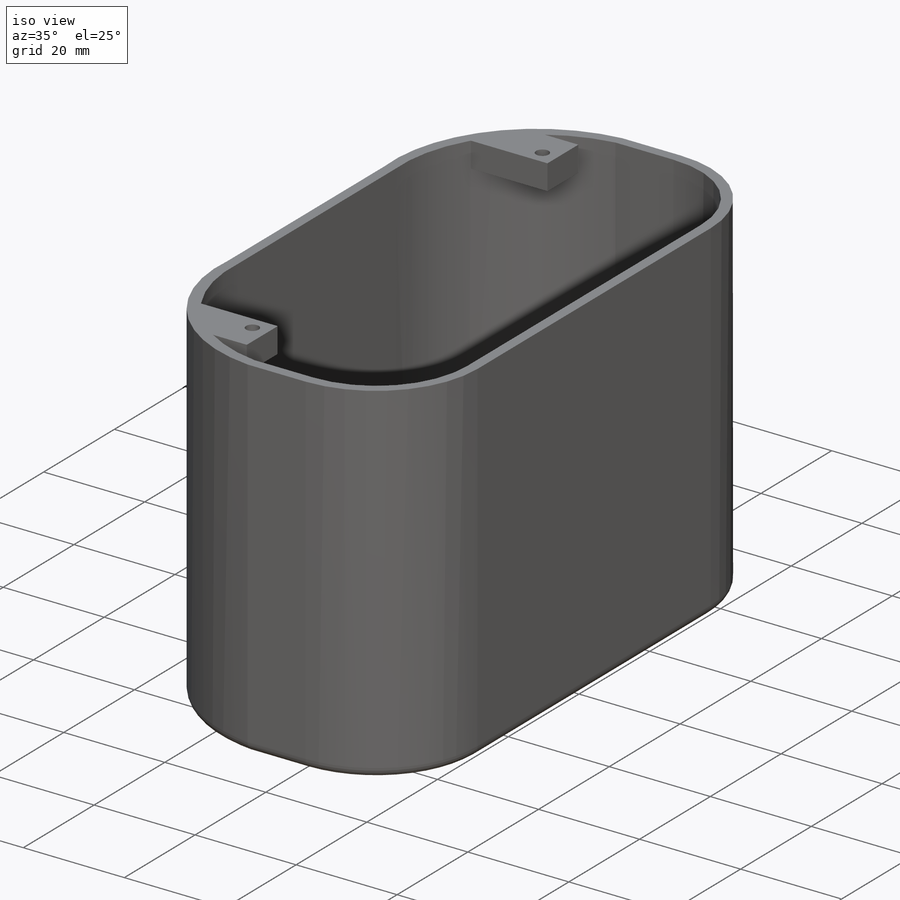
[diagram: iso view]
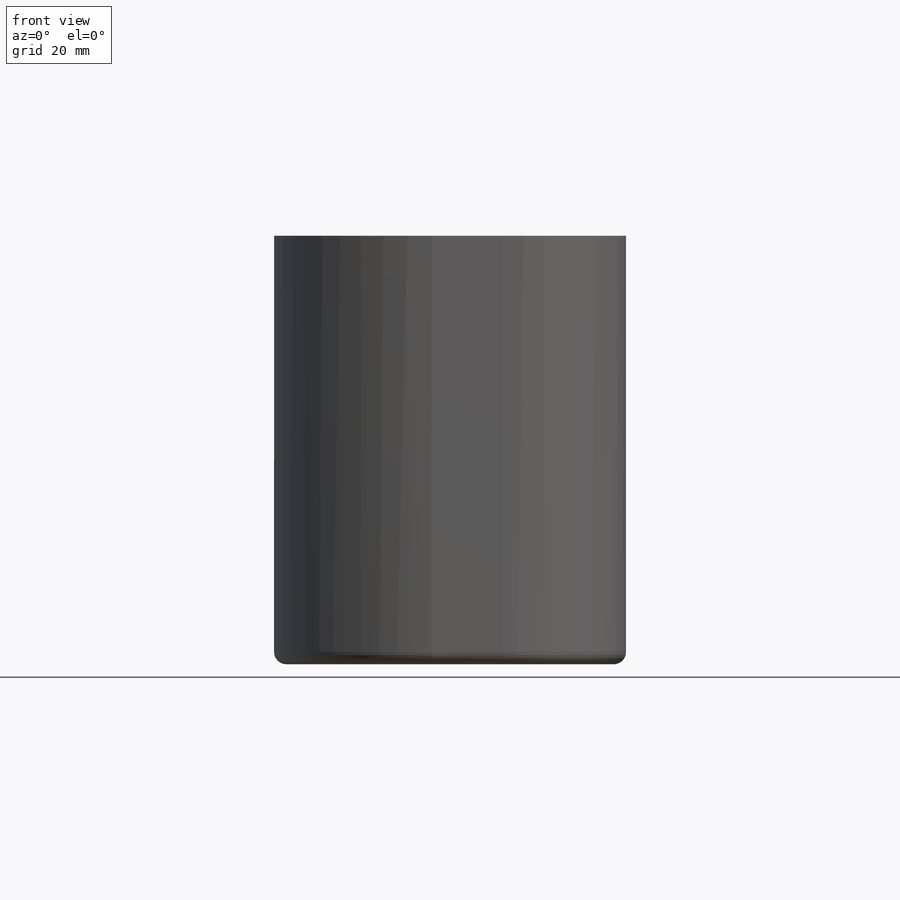
[diagram: front view]
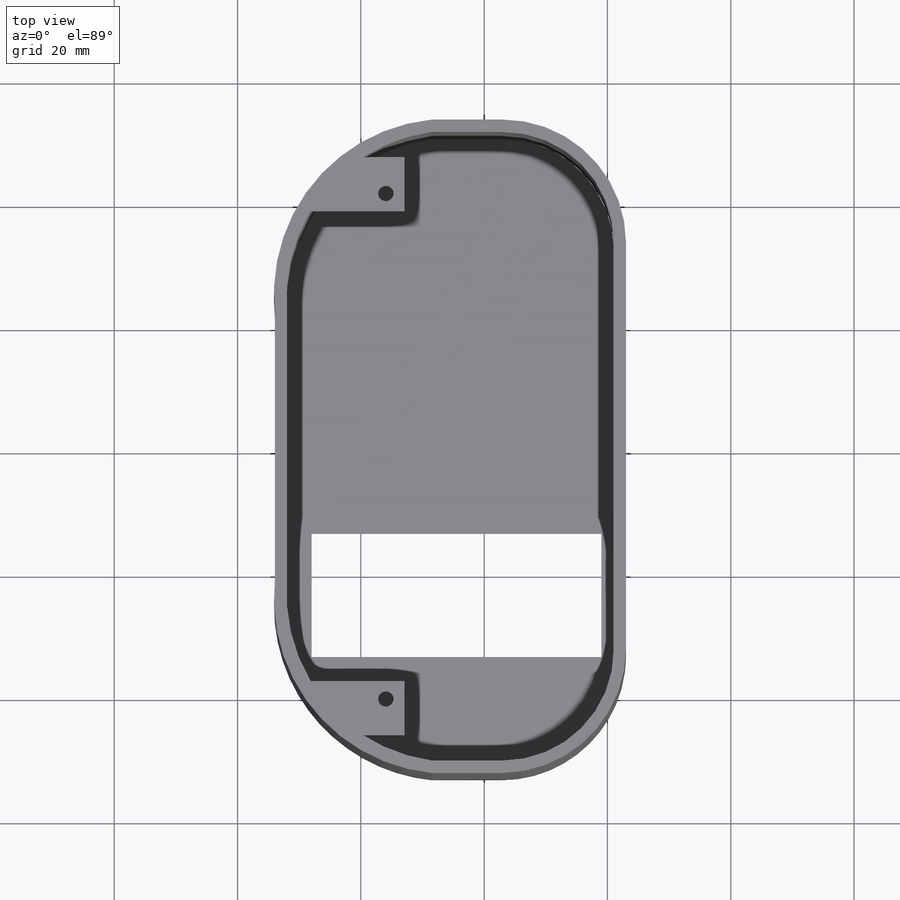
[diagram: top view]
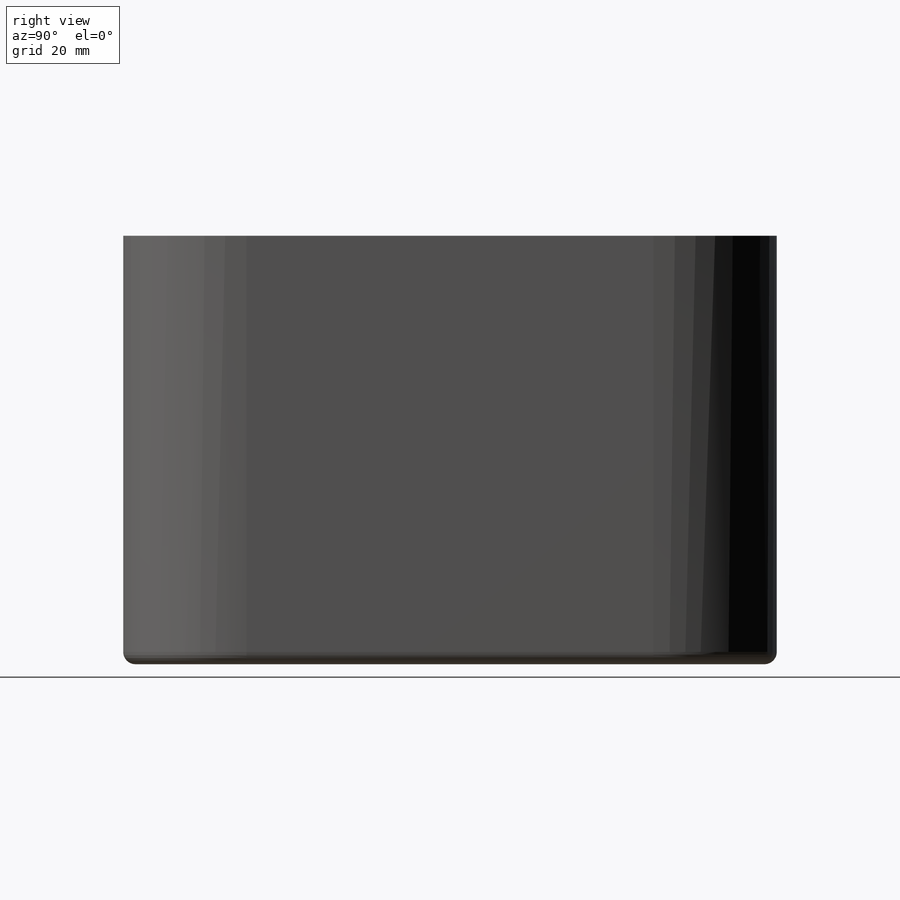
[diagram: right view]
SOLIDWORKS PART (.sldprt)
format: sldprt  version: not decoded by parser v0  size: 1,317,888 bytes
history: native  units: mm
features: sketch x59, extrude x23, cut_extrude x18, hole x4, material x1, plane x1, fillet x1 (+12 scaffold rows collapsed)
feature tree (119):
  scaffold x12  (default folders/planes/origin — collapsed)
  material  "Material <not specified>"
  sketch  "Sketch1"  dims[D1=207.0mm D2=106.0mm]
  extrude  "Boss-Extrude1"  Depth=68mm
  sketch  "Sketch2"  dims[D1=3.0mm D2=3.0mm D3=3.0mm]
  cut_extrude  "Cut-Extrude1"  Depth=32mm
  sketch  "Sketch3"  dims[D1=1.0mm D2=2.0mm D3=1.0mm D4=1.0mm]
  cut_extrude  "Cut-Extrude2"  Depth=3mm
  hole  "M18 Clearance Hole2"  Diameter=18mm Depth=36mm
  sketch  "3DSketch2"  dims[D1=55.0mm D2=55.0mm D3=36.0mm D4=24.0mm]
  sketch  "Sketch5"  dims[hole-wizard template sketch: 59 standard entries collapsed; hole parameters kept: c18.Thru Hole Dia.=18.0mm c18.Thru Hole Depth=36.0mm]
  sketch  "Sketch6"  dims[D1=10.0mm D2=10.0mm D3=117.0mm]
  extrude  "Boss-Extrude2"  Depth=29mm
  sketch  "Sketch7"  dims[D1=10.0mm D2=10.0mm D3=83.0mm]
  extrude  "Boss-Extrude3"  Depth=29mm
  sketch  "Sketch8"  dims[D1=10.0mm D2=10.0mm D3=25.0mm]
  extrude  "Boss-Extrude4"  Depth=29mm
  sketch  "Sketch9"  dims[D1=10.0mm D2=10.0mm D3=25.0mm]
  extrude  "Boss-Extrude5"  Depth=29mm
  hole  "M3 Clearance Hole1"  Diameter=3.4mm Depth=26mm
  sketch  "3DSketch4"  dims[c1.D1=5.0mm c1.D2=5.0mm c1.D3=5.0mm c1.D4=5.0mm c1.D5=5.0mm c1.D6=5.0mm c1.D7=29.0mm c1.D8=29.0mm c2.D7=5.0mm c2.D8=5.0mm]
  sketch  "Sketch11"  dims[hole-wizard template sketch: 47 standard entries collapsed; hole parameters kept: c15.Hole Depth=26.0mm c15.D3=~14.816244mm c15.Drill Angle=118.0deg]
  sketch  "Sketch12"  dims[D1=5.0mm D2=5.0mm]
  cut_extrude  "Cut-Extrude4"  Depth=6mm
  sketch  "Sketch13"  dims[D1=5.0mm D2=5.0mm]
  sketch  "Sketch14"  dims[D1=5.0mm D2=5.0mm]
  cut_extrude  "Cut-Extrude6"  Depth=6mm
  sketch  "Sketch15"  dims[D1=5.0mm D2=5.0mm]
  cut_extrude  "Cut-Extrude8"  Depth=6mm
  plane  "Plane3"  Offset=9mm
  sketch  "Sketch16"  dims[D1=48.0mm D2=55.0mm]
  sketch  "Sketch17"  dims[D1=55.0mm]
  sketch  "Sketch18"  dims[D1=60.0mm D2=55.0mm]
  cut_extrude  "Cut-Extrude9"  [1 undecoded]
  sketch  "Sketch19"  dims[D1=36.0mm D2=55.0mm]
  cut_extrude  "Cut-Extrude10"  [1 undecoded]
  sketch  "Sketch20"  dims[D1=48.0mm D2=6.0mm D3=11.0mm]
  cut_extrude  "Cut-Extrude13"  Depth=2mm
  sketch  "Sketch21"  dims[D1=48.0mm D2=11.0mm D3=6.0mm]
  cut_extrude  "Cut-Extrude14"  Depth=2mm
  sketch  "Sketch22"  dims[D1=21.0mm D2=28.0mm]
  cut_extrude  "Cut-Extrude15"  [1 undecoded]
  sketch  "Sketch24"  dims[D1=30.0mm]
  extrude  "Boss-Extrude6"  [1 undecoded]
  sketch  "Sketch25"  dims[D1=30.0mm D2=1.3mm]
  extrude  "Boss-Extrude7"  Depth=33.5mm
  sketch  "Sketch26"  dims[D1=1.8mm D2=~31.02439mm]
  extrude  "Boss-Extrude8"  [1 undecoded]
  sketch  "Sketch27"
  extrude  "Boss-Extrude9"  Depth=1.5mm
  sketch  "Sketch28"  dims[D1=21.0mm D2=28.0mm]
  cut_extrude  "Cut-Extrude16"  [1 undecoded]
  sketch  "Sketch29"  dims[D1=30.0mm]
  extrude  "Boss-Extrude10"  [1 undecoded]
  sketch  "Sketch31"  dims[D1=30.0mm D2=1.3mm]
  extrude  "Boss-Extrude11"  [1 undecoded]
  sketch  "Sketch32"  dims[c1.D1=~29.905066mm c1.D2=~27.24357mm c2.D1=1.3mm c2.D2=1.8mm c3.D1=1.8mm]
  extrude  "Boss-Extrude12"  [1 undecoded]
  sketch  "Sketch33"  dims[D1=15.0mm D2=55.0mm]
  cut_extrude  "Cut-Extrude17"  [1 undecoded]
  sketch  "Sketch48"  dims[D1=129.0mm]
  cut_extrude  "Cut-Extrude20"  [1 undecoded]
  sketch  "Sketch51"  dims[D1=154.45mm]
  sketch  "Sketch53"  dims[D1=12.725mm D2=0.0mm D3=44.0mm D4=25.45mm D5=50.0mm]
  extrude  "Boss-Extrude14"  [1 undecoded]
  sketch  "Sketch55"
  extrude  "Boss-Extrude15"  [1 undecoded]
  sketch  "Sketch56"
  extrude  "Boss-Extrude16"  [1 undecoded]
  sketch  "Sketch57"  dims[D1=2.0mm]
  extrude  "Boss-Extrude17"  [1 undecoded]
  sketch  "Sketch60"  dims[D1=2.0mm]
  extrude  "Boss-Extrude19"  [1 undecoded]
  sketch  "Sketch61"  dims[D1=1.8mm]
  sketch  "Sketch63"  dims[D1=2.0mm D2=2.0mm]
  extrude  "Boss-Extrude23"  [1 undecoded]
  hole  "M3 Clearance Hole2"  Diameter=3.4mm Depth=78.5mm
  sketch  "3DSketch5"  dims[c1.D1=3.0mm c1.D2=~3.611067mm c1.D3=2.5mm c2.D2=3.0mm c2.D3=~4.760461mm c2.D5=5.0mm c2.D4=5.0mm c3.D3=5.0mm]
  sketch  "Sketch65"  dims[hole-wizard template sketch: 60 standard entries collapsed; hole parameters kept: c18.Thru Hole Depth=78.5mm]
  sketch  "Sketch66"
  cut_extrude  "Cut-Extrude22"  Depth=9mm
  sketch  "Sketch67"  dims[D1=56.96mm]
  sketch  "Sketch68"
  cut_extrude  "Cut-Extrude23"  [1 undecoded]
  sketch  "Sketch69"
  cut_extrude  "Cut-Extrude24"  Depth=63mm
  sketch  "Sketch70"  dims[D1=20.0mm D2=4.0mm D3=47.0mm D4=20.0mm]
  cut_extrude  "Cut-Extrude25"  Depth=2mm
  sketch  "Sketch71"  dims[D1=2.0mm]
  extrude  "Boss-Extrude24"  [1 undecoded]
  sketch  "Sketch73"  dims[D1=20.0mm D2=20.0mm D3=20.0mm D4=20.0mm]
  sketch  "Sketch74"
  sketch  "Sketch75"
  cut_extrude  "Cut-Extrude27"  [1 undecoded]
  sketch  "Sketch76"
  extrude  "Boss-Extrude25"  [1 undecoded]
  sketch  "Sketch77"
  extrude  "Boss-Extrude26"  [1 undecoded]
  sketch  "Sketch78"  dims[D1=36.0mm D2=10.0mm D3=10.0mm D4=10.0mm D5=36.0mm D6=10.0mm D7=94.0mm]
  sketch  "Sketch82"  dims[D1=~27.167099mm D2=21.0mm]
  extrude  "Boss-Extrude28"  Depth=5mm
  sketch  "Sketch83"  dims[D1=21.0mm]
  extrude  "Boss-Extrude29"  Depth=5mm
  hole  "M3x0.5 Tapped Hole2"  Diameter=2.5mm Depth=7.5mm
  sketch  "3DSketch7"  dims[D1=18.0mm D2=12.0mm D3=18.0mm D4=12.0mm]
  sketch  "Sketch84"  dims[hole-wizard template sketch: 50 standard entries collapsed; hole parameters above]
  sketch  "Sketch85"  dims[D1=10.0mm D2=10.0mm D3=5.0mm]
  fillet  "Fillet1"  Radius=2mm
decode coverage: 73 of 105 modeling features carry decoded parameters
note: ~ marks probable driven/reference dimensions
note: 22 parameter values undecoded
summary: no parameter record found for 22 features; Diameter pulled from absorbed wizard sketch
note: suppression state not decoded; provenance and decode notes live in map.json
